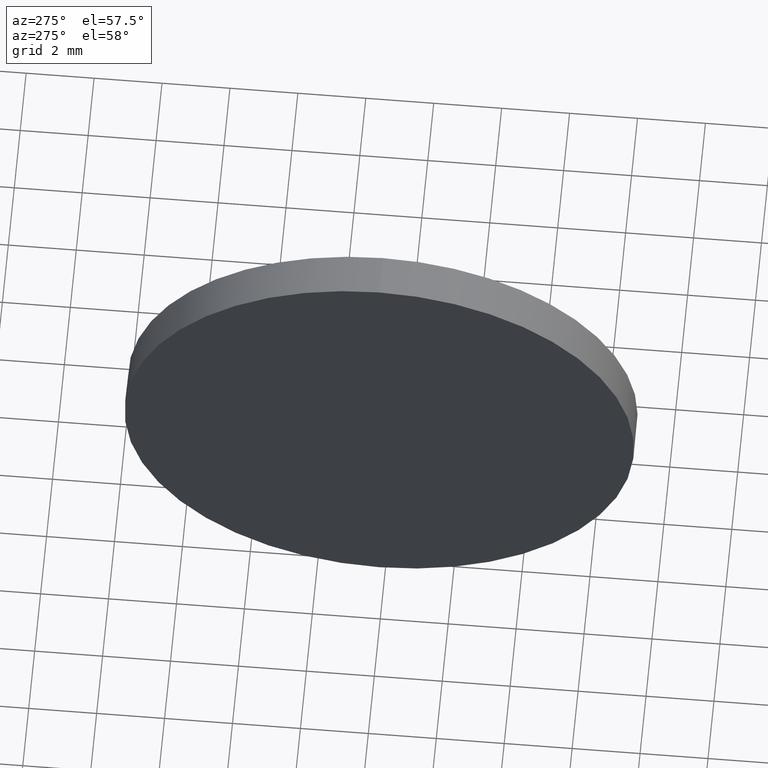
[diagram: clean part render]
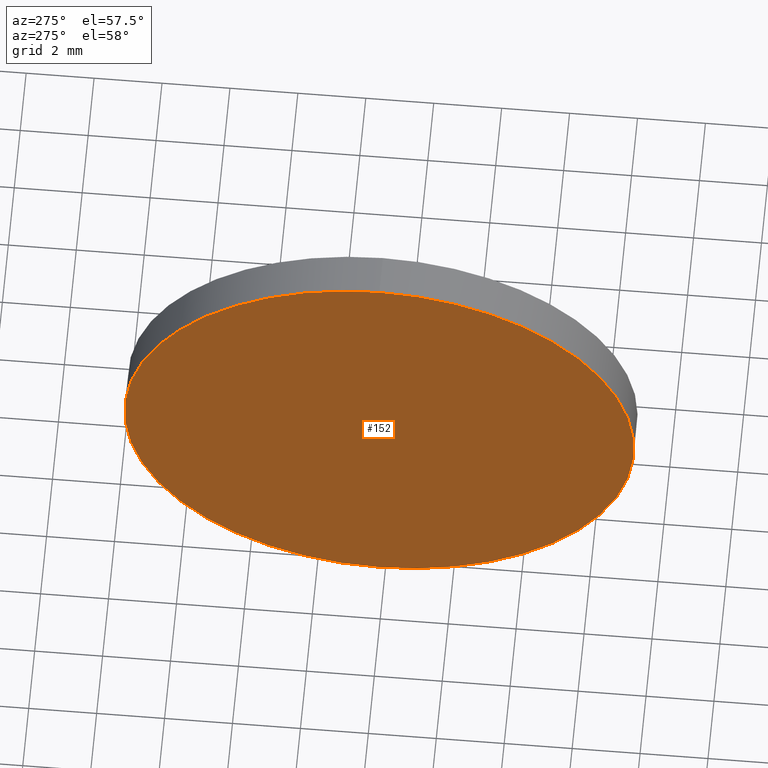
[diagram: same view with one face highlighted and labeled with its STEP entity id]
A machine part, auxiliary view. The second image highlights one B-rep face of the part: STEP entity #152.
In plain terms, the highlighted planar face has unit normal (1, 0, 0).
Its self-contained STEP definition (entity closure, byte-faithful):
#5 = AXIS2_PLACEMENT_3D ( 'NONE', #172, #118, #174 ) ;
#6 = ORIENTED_EDGE ( 'NONE', *, *, #181, .T. ) ;
#29 = CARTESIAN_POINT ( 'NONE',  ( 465.5821324568758000, 58.16787172714012400, 0.0000000000000000000 ) ) ;
#43 = PLANE ( 'NONE',  #138 ) ;
#51 = DIRECTION ( 'NONE',  ( -1.000000000000000000, -0.0000000000000000000, -0.0000000000000000000 ) ) ;
#69 = DIRECTION ( 'NONE',  ( 0.0000000000000000000, 0.0000000000000000000, 1.000000000000000000 ) ) ;
#70 = FACE_OUTER_BOUND ( 'NONE', #124, .T. ) ;
#80 = EDGE_CURVE ( 'NONE', #166, #88, #150, .T. ) ;
#83 = ORIENTED_EDGE ( 'NONE', *, *, #80, .T. ) ;
#88 = VERTEX_POINT ( 'NONE', #132 ) ;
#100 = CIRCLE ( 'NONE', #5, 7.500000000000007100 ) ;
#106 = CARTESIAN_POINT ( 'NONE',  ( 465.5821324568758000, 58.16787172714012400, 0.0000000000000000000 ) ) ;
#109 = DIRECTION ( 'NONE',  ( 1.000000000000000000, 0.0000000000000000000, 0.0000000000000000000 ) ) ;
#118 = DIRECTION ( 'NONE',  ( -1.000000000000000000, -0.0000000000000000000, -0.0000000000000000000 ) ) ;
#124 = EDGE_LOOP ( 'NONE', ( #6, #83 ) ) ;
#130 = DIRECTION ( 'NONE',  ( 0.0000000000000000000, 0.0000000000000000000, -1.000000000000000000 ) ) ;
#131 = CARTESIAN_POINT ( 'NONE',  ( 465.5821324568758000, 58.16787172714012400, -7.500000000000007100 ) ) ;
#132 = CARTESIAN_POINT ( 'NONE',  ( 465.5821324568758000, 58.16787172714012400, 7.500000000000007100 ) ) ;
#138 = AXIS2_PLACEMENT_3D ( 'NONE', #106, #109, #130 ) ;
#140 = AXIS2_PLACEMENT_3D ( 'NONE', #29, #51, #69 ) ;
#150 = CIRCLE ( 'NONE', #140, 7.500000000000007100 ) ;
#152 = ADVANCED_FACE ( 'NONE', ( #70 ), #43, .F. ) ;
#166 = VERTEX_POINT ( 'NONE', #131 ) ;
#172 = CARTESIAN_POINT ( 'NONE',  ( 465.5821324568758000, 58.16787172714012400, 0.0000000000000000000 ) ) ;
#174 = DIRECTION ( 'NONE',  ( 0.0000000000000000000, 0.0000000000000000000, 1.000000000000000000 ) ) ;
#181 = EDGE_CURVE ( 'NONE', #88, #166, #100, .T. ) ;